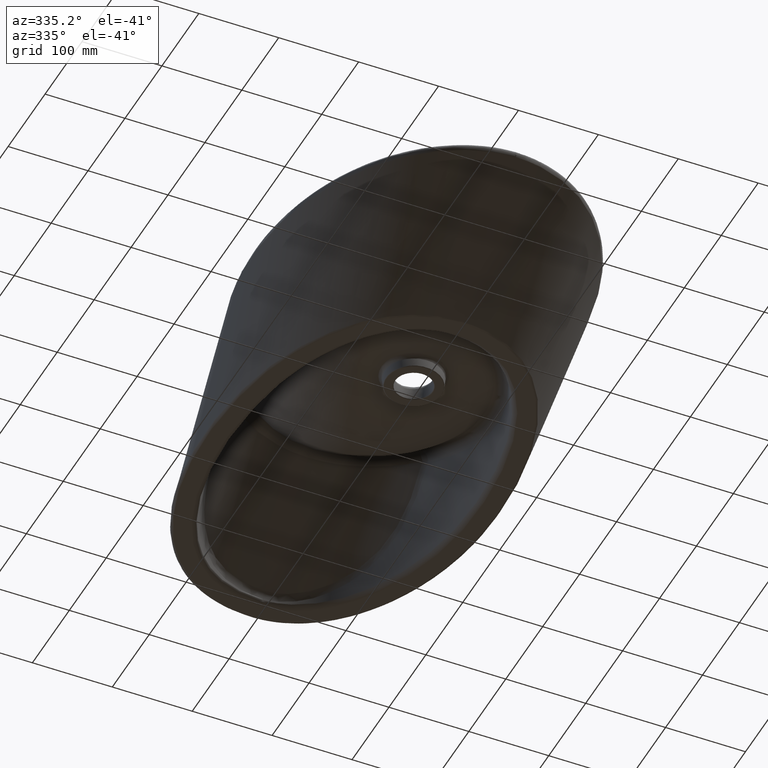
[diagram: clean part render]
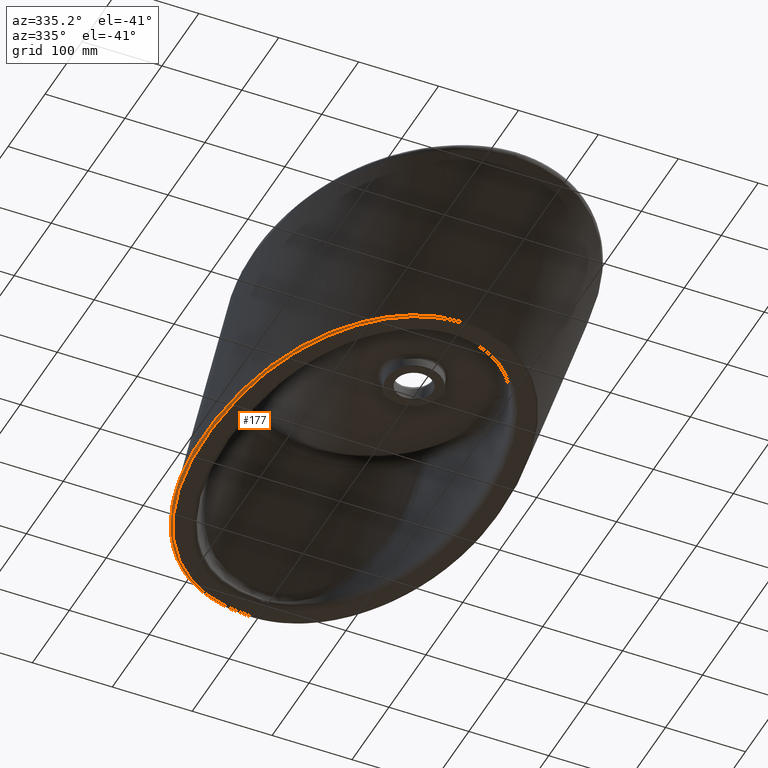
[diagram: same view with one face highlighted and labeled with its STEP entity id]
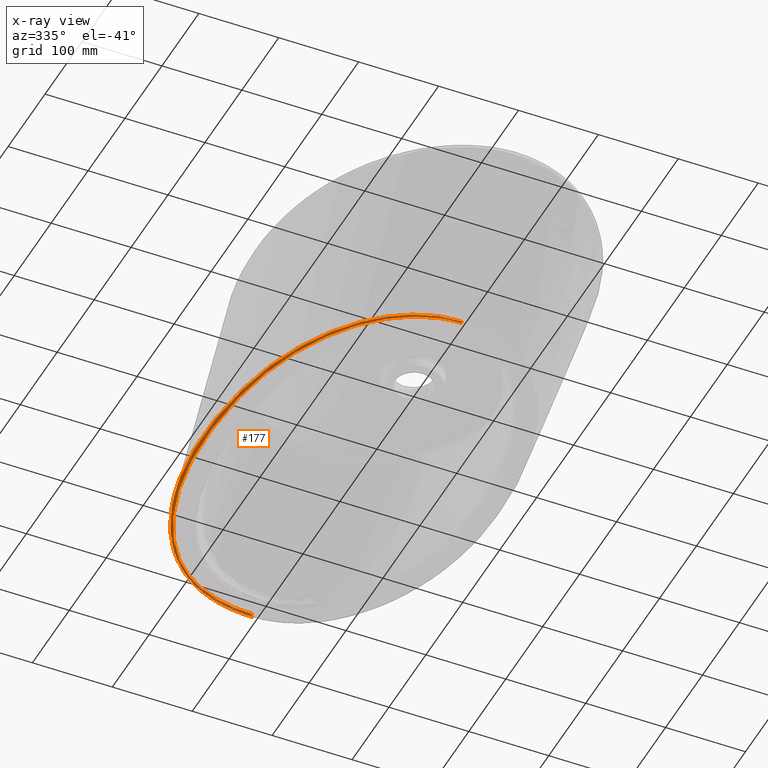
[diagram: x-ray of the same camera — body ghosted, the highlighted face saturated]
A machine part, auxiliary view. The second image highlights one B-rep face of the part: STEP entity #177.
The next image is the same camera in x-ray: the body ghosted, the highlighted face saturated — about 0% of this face is hidden behind the body in this view.
In plain terms, the highlighted face is a freeform B-spline surface patch.
Its self-contained STEP definition (entity closure, byte-faithful):
#145=FACE_OUTER_BOUND('',#258,.T.);
#177=ADVANCED_FACE('',(#145),#193,.T.);
#193=(
BOUNDED_SURFACE()
B_SPLINE_SURFACE(3,2,((#16266,#16267,#16268),(#16269,#16270,#16271),(#16272,
#16273,#16274),(#16275,#16276,#16277),(#16278,#16279,#16280),(#16281,#16282,
#16283),(#16284,#16285,#16286),(#16287,#16288,#16289),(#16290,#16291,#16292),
(#16293,#16294,#16295),(#16296,#16297,#16298),(#16299,#16300,#16301),(#16302,
#16303,#16304),(#16305,#16306,#16307),(#16308,#16309,#16310),(#16311,#16312,
#16313),(#16314,#16315,#16316),(#16317,#16318,#16319),(#16320,#16321,#16322),
(#16323,#16324,#16325),(#16326,#16327,#16328),(#16329,#16330,#16331),(#16332,
#16333,#16334),(#16335,#16336,#16337),(#16338,#16339,#16340),(#16341,#16342,
#16343),(#16344,#16345,#16346),(#16347,#16348,#16349),(#16350,#16351,#16352),
(#16353,#16354,#16355),(#16356,#16357,#16358),(#16359,#16360,#16361),(#16362,
#16363,#16364),(#16365,#16366,#16367),(#16368,#16369,#16370),(#16371,#16372,
#16373),(#16374,#16375,#16376),(#16377,#16378,#16379),(#16380,#16381,#16382),
(#16383,#16384,#16385),(#16386,#16387,#16388),(#16389,#16390,#16391),(#16392,
#16393,#16394),(#16395,#16396,#16397),(#16398,#16399,#16400),(#16401,#16402,
#16403),(#16404,#16405,#16406),(#16407,#16408,#16409),(#16410,#16411,#16412),
(#16413,#16414,#16415),(#16416,#16417,#16418),(#16419,#16420,#16421),(#16422,
#16423,#16424),(#16425,#16426,#16427),(#16428,#16429,#16430),(#16431,#16432,
#16433),(#16434,#16435,#16436),(#16437,#16438,#16439),(#16440,#16441,#16442),
(#16443,#16444,#16445),(#16446,#16447,#16448),(#16449,#16450,#16451),(#16452,
#16453,#16454),(#16455,#16456,#16457),(#16458,#16459,#16460),(#16461,#16462,
#16463)),.UNSPECIFIED.,.F.,.F.,.F.)
B_SPLINE_SURFACE_WITH_KNOTS((4,2,2,2,2,2,2,2,2,2,2,2,2,2,2,2,2,2,2,2,2,
2,2,2,2,2,2,2,2,2,2,2,4),(3,3),(0.,0.00390625,0.005859375,0.0078125,0.015625,
0.03125,0.0625,0.078125,0.09375,0.125,0.15625,0.1875,0.21875,0.25,0.3125,
0.375,0.4375,0.46875,0.5,0.5625,0.59375,0.625,0.65625,0.6875,0.75,0.78125,
0.8125,0.875,0.90625,0.9375,0.96875,0.984375,1.),(0.,1.),.UNSPECIFIED.)
GEOMETRIC_REPRESENTATION_ITEM()
RATIONAL_B_SPLINE_SURFACE(((1.,0.3572909027244,1.),(1.,0.357291852863364,
1.),(1.,0.357292803011471,1.),(1.,0.357294228230607,1.),(1.,0.35729470330786,
1.),(1.,0.357295653457776,1.),(1.,0.357297349951978,1.),(1.,0.357316010524788,
1.),(1.,0.357359736375325,1.),(1.,0.357594357642762,1.),(1.,0.357888667708263,
1.),(1.,0.359324279057586,1.),(1.,0.361014054029266,1.),(1.,0.365270604122683,
1.),(1.,0.366985746660598,1.),(1.,0.371055621179075,1.),(1.,0.373404141542212,
1.),(1.,0.381434146351181,1.),(1.,0.388190369833845,1.),(1.,0.404086708090815,
1.),(1.,0.413319292257796,1.),(1.,0.433275046513265,1.),(1.,0.444017370886106,
1.),(1.,0.466583278571303,1.),(1.,0.478478594545054,1.),(1.,0.502583983864212,
1.),(1.,0.514806292034081,1.),(1.,0.551752581376113,1.),(1.,0.576758580042427,
1.),(1.,0.626494896611777,1.),(1.,0.649151595253737,1.),(1.,0.689331635014328,
1.),(1.,0.706993055557059,1.),(1.,0.730230916311652,1.),(1.,0.737440522074386,
1.),(1.,0.75087028238501,1.),(1.,0.757098893091256,1.),(1.,0.774392778283555,
1.),(1.,0.784130819336277,1.),(1.,0.796282057179368,1.),(1.,0.79951835403304,
1.),(1.,0.806878481402961,1.),(1.,0.812711745102488,1.),(1.,0.822983224563652,
1.),(1.,0.827882174055744,1.),(1.,0.837378212895926,1.),(1.,0.841995009235178,
1.),(1.,0.855644371802229,1.),(1.,0.864296201973204,1.),(1.,0.87651594289937,
1.),(1.,0.880565119914181,1.),(1.,0.888438913778657,1.),(1.,0.892213031671928,
1.),(1.,0.903127180426162,1.),(1.,0.909990984545945,1.),(1.,0.919205938564541,
1.),(1.,0.922093869850663,1.),(1.,0.927151217765969,1.),(1.,0.929365009850183,
1.),(1.,0.933022095530882,1.),(1.,0.934369262873657,1.),(1.,0.935585810520397,
1.),(1.,0.93586158114611,1.),(1.,0.936135368838545,1.),(1.,0.936108193864393,
1.),(1.,0.936015364577366,1.)))
REPRESENTATION_ITEM('')
SURFACE()
);
#258=EDGE_LOOP('',(#366,#367,#368,#369));
#366=ORIENTED_EDGE('',*,*,#478,.T.);
#367=ORIENTED_EDGE('',*,*,#462,.T.);
#368=ORIENTED_EDGE('',*,*,#479,.T.);
#369=ORIENTED_EDGE('',*,*,#435,.T.);
#393=VERTEX_POINT('',#1643);
#395=VERTEX_POINT('',#1735);
#416=VERTEX_POINT('',#14973);
#417=VERTEX_POINT('',#14974);
#435=EDGE_CURVE('',#393,#395,#495,.T.);
#462=EDGE_CURVE('',#416,#417,#520,.T.);
#478=EDGE_CURVE('',#395,#416,#532,.T.);
#479=EDGE_CURVE('',#417,#393,#533,.T.);
#495=B_SPLINE_CURVE_WITH_KNOTS('',3,(#1736,#1737,#1738,#1739,#1740,#1741,
#1742,#1743,#1744,#1745,#1746,#1747,#1748,#1749,#1750,#1751,#1752,#1753,
#1754,#1755,#1756,#1757,#1758,#1759,#1760,#1761,#1762,#1763,#1764,#1765,
#1766,#1767,#1768,#1769,#1770,#1771,#1772,#1773,#1774,#1775,#1776,#1777,
#1778,#1779,#1780,#1781,#1782,#1783,#1784,#1785),.UNSPECIFIED.,.F.,.F.,
(4,2,2,2,2,2,2,2,2,2,2,2,2,2,2,2,2,2,2,2,2,2,2,2,4),(0.,0.03125,0.0625,
0.09375,0.125,0.1875,0.21875,0.25,0.3125,0.375,0.4375,0.5,0.5625,0.625,
0.6875,0.75,0.78125,0.8125,0.84375,0.875,0.90625,0.9375,0.96875,0.984375,
1.),.UNSPECIFIED.);
#520=B_SPLINE_CURVE_WITH_KNOTS('',3,(#14927,#14928,#14929,#14930,#14931,
#14932,#14933,#14934,#14935,#14936,#14937,#14938,#14939,#14940,#14941,#14942,
#14943,#14944,#14945,#14946,#14947,#14948,#14949,#14950,#14951,#14952,#14953,
#14954,#14955,#14956,#14957,#14958,#14959,#14960,#14961,#14962,#14963,#14964,
#14965,#14966,#14967,#14968,#14969,#14970,#14971,#14972),.UNSPECIFIED.,
 .F.,.F.,(4,2,2,2,2,2,2,2,2,2,2,2,2,2,2,2,2,2,2,2,2,2,4),(0.,0.0625000000000002,
0.0937500000000003,0.125,0.15625,0.187500000000001,0.218750000000001,0.250000000000001,
0.312500000000001,0.375000000000001,0.437500000000001,0.500000000000001,
0.562500000000001,0.625000000000001,0.687500000000001,0.750000000000001,
0.781250000000001,0.812500000000001,0.875000000000001,0.90625,0.9375,0.96875,
1.),.UNSPECIFIED.);
#532=B_SPLINE_CURVE_WITH_KNOTS('',3,(#16256,#16257,#16258,#16259,#16260,
#16261),.UNSPECIFIED.,.F.,.F.,(4,2,4),(0.,0.5,1.),.UNSPECIFIED.);
#533=B_SPLINE_CURVE_WITH_KNOTS('',3,(#16262,#16263,#16264,#16265),
 .UNSPECIFIED.,.F.,.F.,(4,4),(0.,1.),.UNSPECIFIED.);
#1643=CARTESIAN_POINT('',(1.67674860162163,-127.278417819443,-142.257566274898));
#1735=CARTESIAN_POINT('',(0.00051804703812982,437.5073530061,-137.765959281952));
#1736=CARTESIAN_POINT('',(1.67674860162169,-127.278417819437,-142.257566274903));
#1737=CARTESIAN_POINT('',(-6.21894477736492,-127.387375543256,-142.258509190588));
#1738=CARTESIAN_POINT('',(-13.9744000264923,-126.6901953672,-142.253083171759));
#1739=CARTESIAN_POINT('',(-29.231007481022,-123.834007165101,-142.231321422184));
#1740=CARTESIAN_POINT('',(-36.7760673317722,-121.651771320985,-142.214438961413));
#1741=CARTESIAN_POINT('',(-51.4157003136654,-115.918232913187,-142.171714860233));
#1742=CARTESIAN_POINT('',(-58.3855120120902,-112.436256510563,-142.146514609434));
#1743=CARTESIAN_POINT('',(-71.7307768072041,-104.427594303477,-142.089438968056));
#1744=CARTESIAN_POINT('',(-78.1317798592495,-99.870305894886,-142.05726079008));
#1745=CARTESIAN_POINT('',(-96.330905220391,-84.9450138465171,-141.956339023185));
#1746=CARTESIAN_POINT('',(-106.892677287674,-73.5878322001619,-141.882075430575));
#1747=CARTESIAN_POINT('',(-121.028801751008,-55.0236516106135,-141.765588705146));
#1748=CARTESIAN_POINT('',(-125.468364778185,-48.5479606477462,-141.725446584424));
#1749=CARTESIAN_POINT('',(-133.722507528708,-35.2705815951339,-141.64243532956));
#1750=CARTESIAN_POINT('',(-137.531277478898,-28.4809467842336,-141.600306636489));
#1751=CARTESIAN_POINT('',(-148.133043896479,-7.72101872012188,-141.473545610151));
#1752=CARTESIAN_POINT('',(-154.110053255391,6.63621666359005,-141.384683824478));
#1753=CARTESIAN_POINT('',(-164.177511430015,36.2453229173849,-141.201401677146));
#1754=CARTESIAN_POINT('',(-168.206144979986,51.275579889029,-141.108747573866));
#1755=CARTESIAN_POINT('',(-174.465521196352,81.5464928506029,-140.908670865322));
#1756=CARTESIAN_POINT('',(-176.670932772331,96.8248526365827,-140.840830201044));
#1757=CARTESIAN_POINT('',(-180.08562716237,127.535276547181,-140.687465519289));
#1758=CARTESIAN_POINT('',(-181.189898279342,142.983523650101,-140.596591520537));
#1759=CARTESIAN_POINT('',(-182.059470830232,174.086599936571,-140.387131822246));
#1760=CARTESIAN_POINT('',(-181.820001535622,189.643039850289,-140.268195508033));
#1761=CARTESIAN_POINT('',(-179.847580277659,220.482396801062,-140.002346849018));
#1762=CARTESIAN_POINT('',(-178.11803782209,235.806486334219,-139.855118452718));
#1763=CARTESIAN_POINT('',(-172.895697217503,266.228012019872,-139.536421071781));
#1764=CARTESIAN_POINT('',(-169.406548112754,281.333770166721,-139.364490778327));
#1765=CARTESIAN_POINT('',(-160.154256916896,311.221476134694,-139.008971749914));
#1766=CARTESIAN_POINT('',(-154.500175511168,325.674431710685,-138.840635349236));
#1767=CARTESIAN_POINT('',(-144.084113263804,346.429850212678,-138.608377298092));
#1768=CARTESIAN_POINT('',(-140.287032015664,353.193091711753,-138.534239933109));
#1769=CARTESIAN_POINT('',(-131.928167584893,366.35438666256,-138.393003411377));
#1770=CARTESIAN_POINT('',(-127.342525564448,372.774965789872,-138.325695475208));
#1771=CARTESIAN_POINT('',(-117.496263489802,384.882927019763,-138.202034201427));
#1772=CARTESIAN_POINT('',(-112.218138578564,390.604644942466,-138.145308661878));
#1773=CARTESIAN_POINT('',(-100.860362944033,401.297873126695,-138.042815703647));
#1774=CARTESIAN_POINT('',(-94.7281180026513,406.300060468821,-137.996807416805));
#1775=CARTESIAN_POINT('',(-81.9176538771225,415.191429169154,-137.918720373709));
#1776=CARTESIAN_POINT('',(-75.2235814917858,419.106595780188,-137.886082960195));
#1777=CARTESIAN_POINT('',(-61.2467868350322,425.855752736364,-137.834675733156));
#1778=CARTESIAN_POINT('',(-53.9265987999395,428.698802461098,-137.815238077778));
#1779=CARTESIAN_POINT('',(-38.8493577936868,433.204377774579,-137.787115914406));
#1780=CARTESIAN_POINT('',(-31.1468635386496,434.851472137964,-137.778359916995));
#1781=CARTESIAN_POINT('',(-19.5400652080729,436.461216577344,-137.770459430443));
#1782=CARTESIAN_POINT('',(-15.6542408070948,436.856681372954,-137.768685058628));
#1783=CARTESIAN_POINT('',(-7.85053320511692,437.379782381014,-137.766440724875));
#1784=CARTESIAN_POINT('',(-3.87958056979837,437.507405319619,-137.765970682982));
#1785=CARTESIAN_POINT('',(0.000518047037549408,437.507353008874,-137.765959284439));
#14927=CARTESIAN_POINT('',(0.000518433882858887,435.505088770152,-143.));
#14928=CARTESIAN_POINT('',(-15.5621692766479,435.505250143515,-143.));
#14929=CARTESIAN_POINT('',(-30.8019857031645,433.493223765088,-143.));
#14930=CARTESIAN_POINT('',(-53.0746679409747,426.816637929942,-143.));
#14931=CARTESIAN_POINT('',(-60.3533991097898,423.977758423142,-143.));
#14932=CARTESIAN_POINT('',(-74.1796354809044,417.25010983164,-143.));
#14933=CARTESIAN_POINT('',(-80.7930509678644,413.344401153449,-143.));
#14934=CARTESIAN_POINT('',(-93.4345829822124,404.474720502353,-143.));
#14935=CARTESIAN_POINT('',(-99.4770084402833,399.485353755615,-143.));
#14936=CARTESIAN_POINT('',(-110.65370591423,388.825809223969,-143.));
#14937=CARTESIAN_POINT('',(-115.840632874129,383.124403778285,-143.));
#14938=CARTESIAN_POINT('',(-125.506680646587,371.066311424165,-143.));
#14939=CARTESIAN_POINT('',(-130.001887323022,364.676794565409,-143.));
#14940=CARTESIAN_POINT('',(-138.187589534747,351.589637654378,-143.));
#14941=CARTESIAN_POINT('',(-141.902611694377,344.867750279126,-143.));
#14942=CARTESIAN_POINT('',(-152.087689658787,324.249040506592,-143.));
#14943=CARTESIAN_POINT('',(-157.607981223826,309.903995607351,-143.));
#14944=CARTESIAN_POINT('',(-166.642326948799,280.267101631992,-143.));
#14945=CARTESIAN_POINT('',(-170.05329422794,265.302950567718,-143.));
#14946=CARTESIAN_POINT('',(-175.172752629453,235.161572028928,-143.));
#14947=CARTESIAN_POINT('',(-176.875837595519,219.98145835528,-143.));
#14948=CARTESIAN_POINT('',(-178.830959746167,189.435879805464,-143.));
#14949=CARTESIAN_POINT('',(-179.079647544055,174.030341917542,-143.));
#14950=CARTESIAN_POINT('',(-178.253849839604,143.22861551913,-143.));
#14951=CARTESIAN_POINT('',(-177.184039093211,127.927950540337,-143.));
#14952=CARTESIAN_POINT('',(-173.853651573909,97.5082471263473,-143.));
#14953=CARTESIAN_POINT('',(-171.697863280939,82.3732253921686,-143.));
#14954=CARTESIAN_POINT('',(-165.599696955203,52.3756889588104,-143.));
#14955=CARTESIAN_POINT('',(-161.667508975228,37.4842675524403,-143.));
#14956=CARTESIAN_POINT('',(-151.822565967197,8.11738261052329,-143.));
#14957=CARTESIAN_POINT('',(-145.972219682894,-6.12973354487952,-143.));
#14958=CARTESIAN_POINT('',(-135.583822872668,-26.7419640081399,-143.));
#14959=CARTESIAN_POINT('',(-131.850860411229,-33.4856650782815,-143.));
#14960=CARTESIAN_POINT('',(-123.758107963622,-46.6783061687291,-143.));
#14961=CARTESIAN_POINT('',(-119.399873991287,-53.1203318249119,-143.));
#14962=CARTESIAN_POINT('',(-105.516604709903,-71.5965068648034,-143.));
#14963=CARTESIAN_POINT('',(-95.1369548566145,-82.915091438424,-143.));
#14964=CARTESIAN_POINT('',(-77.2279112911556,-97.8141163113039,-143.));
#14965=CARTESIAN_POINT('',(-70.9160551797192,-102.376231611005,-143.));
#14966=CARTESIAN_POINT('',(-57.753471798423,-110.394817423634,-143.));
#14967=CARTESIAN_POINT('',(-50.8743988229892,-113.885015143548,-143.));
#14968=CARTESIAN_POINT('',(-36.4129655733365,-119.639433431326,-143.));
#14969=CARTESIAN_POINT('',(-28.9452819220747,-121.835962791421,-143.));
#14970=CARTESIAN_POINT('',(-13.8479583217004,-124.709138240564,-143.));
#14971=CARTESIAN_POINT('',(-6.17052728590995,-125.411894316459,-143.));
#14972=CARTESIAN_POINT('',(1.64934458675244,-125.302906860019,-143.));
#14973=CARTESIAN_POINT('',(0.000518433882858887,435.505088770152,-143.));
#14974=CARTESIAN_POINT('',(1.64934458675246,-125.302906860019,-143.));
#16256=CARTESIAN_POINT('',(0.000523369311799462,437.507353008794,-137.765959284417));
#16257=CARTESIAN_POINT('',(0.000532677338495764,438.405009907591,-138.570486388395));
#16258=CARTESIAN_POINT('',(0.000536127667351723,438.737756213734,-139.946028079274));
#16259=CARTESIAN_POINT('',(0.000527195743664639,437.876370317577,-142.197743295314));
#16260=CARTESIAN_POINT('',(0.000515106698448602,436.710514740223,-143.));
#16261=CARTESIAN_POINT('',(0.000502607338032238,435.505088770316,-143.));
#16262=CARTESIAN_POINT('',(1.6492811356508,-125.302907744335,-143.));
#16263=CARTESIAN_POINT('',(1.65929942031211,-126.021750856322,-143.));
#16264=CARTESIAN_POINT('',(1.66927418964535,-126.737471608055,-142.731018598322));
#16265=CARTESIAN_POINT('',(1.67681317014752,-127.278416928397,-142.257566267192));
#16266=CARTESIAN_POINT('',(4.48296923974109,435.505042290162,-143.));
#16267=CARTESIAN_POINT('',(4.48305055962103,443.34733393279,-143.));
#16268=CARTESIAN_POINT('',(4.48299000181063,437.507285831821,-137.765940735018));
#16269=CARTESIAN_POINT('',(3.4985421095964,435.505052498163,-143.));
#16270=CARTESIAN_POINT('',(3.49862604685474,443.347320234187,-143.000000000464));
#16271=CARTESIAN_POINT('',(3.49856287165161,437.507300585332,-137.765944808937));
#16272=CARTESIAN_POINT('',(2.51411497958031,435.505062705994,-143.));
#16273=CARTESIAN_POINT('',(2.51419891627537,443.347306535075,-143.000000000041));
#16274=CARTESIAN_POINT('',(2.51413574159888,437.507315338406,-137.765948882535));
#16275=CARTESIAN_POINT('',(1.03747428434436,435.505078017667,-143.));
#16276=CARTESIAN_POINT('',(1.03755625690673,443.347285986843,-142.99999999998));
#16277=CARTESIAN_POINT('',(1.03749504634467,437.507337468134,-137.765954993141));
#16278=CARTESIAN_POINT('',(0.545260719331827,435.505083121564,-143.));
#16279=CARTESIAN_POINT('',(0.545342691640006,443.347279137394,-143.000000000014));
#16280=CARTESIAN_POINT('',(0.545281481322001,437.507344844753,-137.765957030066));
#16281=CARTESIAN_POINT('',(-0.439166410804005,435.505093329373,-143.));
#16282=CARTESIAN_POINT('',(-0.43908443904989,443.347265438673,-142.999999999986));
#16283=CARTESIAN_POINT('',(-0.439145648844426,437.507359597912,-137.765961103881));
#16284=CARTESIAN_POINT('',(-0.93110424419317,435.503349020232,-143.));
#16285=CARTESIAN_POINT('',(-0.971935077733096,443.34540228373,-142.999999999973));
#16286=CARTESIAN_POINT('',(-0.941530539729499,437.505603948942,-137.765968377595));
#16287=CARTESIAN_POINT('',(-3.38907691149996,435.483736934231,-143.));
#16288=CARTESIAN_POINT('',(-3.53849315047049,443.324454297926,-143.000000000109));
#16289=CARTESIAN_POINT('',(-3.42725031844871,437.485859741217,-137.766048386999));
#16290=CARTESIAN_POINT('',(-5.35030790317624,435.435390596303,-143.));
#16291=CARTESIAN_POINT('',(-5.58759889850644,443.272875837565,-143.000000000109));
#16292=CARTESIAN_POINT('',(-5.41101919148761,437.437173737984,-137.766235850514));
#16293=CARTESIAN_POINT('',(-11.2182295208576,435.190288289198,-143.));
#16294=CARTESIAN_POINT('',(-11.7223582181896,443.010725019047,-142.999999999783));
#16295=CARTESIAN_POINT('',(-11.3475767545855,437.190327647715,-137.767242200678));
#16296=CARTESIAN_POINT('',(-15.1091573868054,434.893523574904,-143.));
#16297=CARTESIAN_POINT('',(-15.7931094878349,442.693283316622,-143.000000000162));
#16298=CARTESIAN_POINT('',(-15.2856253029277,436.891435422891,-137.76850441699));
#16299=CARTESIAN_POINT('',(-26.7159565276296,433.584583024915,-143.));
#16300=CARTESIAN_POINT('',(-27.9430231153456,441.286993058771,-142.999999999677));
#16301=CARTESIAN_POINT('',(-27.0378840526319,435.572990956033,-137.77467812891));
#16302=CARTESIAN_POINT('',(-34.3660203853873,432.154884037736,-143.));
#16303=CARTESIAN_POINT('',(-35.9376904692706,439.758096881998,-142.999999999781));
#16304=CARTESIAN_POINT('',(-34.7903618555802,434.132797971969,-137.781938567847));
#16305=CARTESIAN_POINT('',(-45.6949913592058,429.083228927939,-143.));
#16306=CARTESIAN_POINT('',(-47.8771939695058,436.413190195006,-143.000000000108));
#16307=CARTESIAN_POINT('',(-46.2810139119037,431.038192507027,-137.800523606676));
#16308=CARTESIAN_POINT('',(-49.4637862501569,427.898136312223,-143.));
#16309=CARTESIAN_POINT('',(-51.8259405245151,435.12993495907,-143.));
#16310=CARTESIAN_POINT('',(-50.1052844143623,429.844196514574,-137.808046383742));
#16311=CARTESIAN_POINT('',(-56.8599503110702,425.233038253746,-143.));
#16312=CARTESIAN_POINT('',(-59.5778911091245,432.234090504272,-143.));
#16313=CARTESIAN_POINT('',(-57.6136712996863,427.158981831213,-137.826068798186));
#16314=CARTESIAN_POINT('',(-60.4795983226582,423.757689984967,-143.));
#16315=CARTESIAN_POINT('',(-63.3613214524253,430.63502576484,-143.000000000109));
#16316=CARTESIAN_POINT('',(-61.2899193465795,425.672468250572,-137.83654093032));
#16317=CARTESIAN_POINT('',(-71.108042445222,418.911990379416,-143.));
#16318=CARTESIAN_POINT('',(-74.3863449696826,425.407904677455,-142.999999999787));
#16319=CARTESIAN_POINT('',(-72.0894650594668,420.789741588643,-137.872780098517));
#16320=CARTESIAN_POINT('',(-77.8871180406731,415.123403236575,-143.));
#16321=CARTESIAN_POINT('',(-81.4008755689298,421.341837290658,-142.99999999989));
#16322=CARTESIAN_POINT('',(-78.9842597621798,416.972225384701,-137.903771538845));
#16323=CARTESIAN_POINT('',(-90.8477089370622,406.45829341992,-143.));
#16324=CARTESIAN_POINT('',(-94.7947517848202,411.988754695498,-143.000000000106));
#16325=CARTESIAN_POINT('',(-92.1764937633992,408.237981722819,-137.979337365769));
#16326=CARTESIAN_POINT('',(-97.0680234118461,401.538950292505,-143.));
#16327=CARTESIAN_POINT('',(-101.16401940869,406.751548749033,-142.999999999889));
#16328=CARTESIAN_POINT('',(-98.5132720587787,403.278247890709,-138.024399675946));
#16329=CARTESIAN_POINT('',(-108.596030589511,390.95260238612,-143.));
#16330=CARTESIAN_POINT('',(-112.909246585626,395.464750995226,-143.000000000106));
#16331=CARTESIAN_POINT('',(-110.263529904954,392.602932747551,-138.125766247372));
#16332=CARTESIAN_POINT('',(-113.941209421778,385.271683709645,-143.));
#16333=CARTESIAN_POINT('',(-118.316885956901,389.481080154655,-142.999999999555));
#16334=CARTESIAN_POINT('',(-115.715083894384,386.873370599,-138.182144723267));
#16335=CARTESIAN_POINT('',(-123.896901661967,373.229698782621,-143.));
#16336=CARTESIAN_POINT('',(-128.316167065441,376.810368753993,-143.000000000423));
#16337=CARTESIAN_POINT('',(-125.872116986607,374.727566030563,-138.305435905109));
#16338=CARTESIAN_POINT('',(-128.530059407768,366.828653690006,-143.));
#16339=CARTESIAN_POINT('',(-132.947736323458,370.139653809764,-143.000000000334));
#16340=CARTESIAN_POINT('',(-130.600730864355,368.27101596057,-138.372778988122));
#16341=CARTESIAN_POINT('',(-136.981637553688,353.663600261348,-143.));
#16342=CARTESIAN_POINT('',(-141.327740515975,356.447303705046,-142.999999999682));
#16343=CARTESIAN_POINT('',(-139.227553022491,354.992360183351,-138.514672360143));
#16344=CARTESIAN_POINT('',(-140.812679137136,346.894780254566,-143.));
#16345=CARTESIAN_POINT('',(-145.117909601256,349.453816101255,-143.000000000772));
#16346=CARTESIAN_POINT('',(-143.138639892296,348.165415730636,-138.589243091788));
#16347=CARTESIAN_POINT('',(-151.308800696114,326.117804241462,-143.));
#16348=CARTESIAN_POINT('',(-155.178694322737,328.520220128213,-142.99999999856));
#16349=CARTESIAN_POINT('',(-153.853642279123,327.212197123175,-138.822945389386));
#16350=CARTESIAN_POINT('',(-156.987738418946,311.644257848819,-143.));
#16351=CARTESIAN_POINT('',(-160.788048410213,313.744681981213,-142.999999995918));
#16352=CARTESIAN_POINT('',(-159.650296982421,312.618902902233,-138.992192202402));
#16353=CARTESIAN_POINT('',(-166.279468493206,281.72208849417,-143.));
#16354=CARTESIAN_POINT('',(-169.717855802046,283.244824595755,-143.000000003758));
#16355=CARTESIAN_POINT('',(-169.124275345236,282.457645406714,-139.351264584839));
#16356=CARTESIAN_POINT('',(-169.794868287554,266.562470974137,-143.));
#16357=CARTESIAN_POINT('',(-173.157089336726,267.763466162691,-142.999999999557));
#16358=CARTESIAN_POINT('',(-172.698757628683,267.18077923122,-139.525965107923));
#16359=CARTESIAN_POINT('',(-175.059870582959,236.070196929906,-143.));
#16360=CARTESIAN_POINT('',(-178.113400911987,236.928321589891,-143.000000000417));
#16361=CARTESIAN_POINT('',(-178.036286362766,236.467221931222,-139.848646965204));
#16362=CARTESIAN_POINT('',(-176.810872601305,220.711460637216,-143.));
#16363=CARTESIAN_POINT('',(-179.77871401104,221.340588267158,-142.999999996267));
#16364=CARTESIAN_POINT('',(-179.801185178326,221.004050335517,-139.997595084835));
#16365=CARTESIAN_POINT('',(-178.321472131231,197.530815022239,-143.));
#16366=CARTESIAN_POINT('',(-181.12035659185,197.749213032167,-143.000000001808));
#16367=CARTESIAN_POINT('',(-181.312448414175,197.676865342002,-140.19906314988));
#16368=CARTESIAN_POINT('',(-178.637538493651,189.779986868505,-143.));
#16369=CARTESIAN_POINT('',(-181.383063223134,189.941274231572,-143.000000000218));
#16370=CARTESIAN_POINT('',(-181.62534033672,189.87883935479,-140.262640604135));
#16371=CARTESIAN_POINT('',(-178.914897686696,174.233013169877,-143.));
#16372=CARTESIAN_POINT('',(-181.553007089133,174.30885659852,-142.999999999786));
#16373=CARTESIAN_POINT('',(-181.891354906384,174.240563518661,-140.382566547878));
#16374=CARTESIAN_POINT('',(-178.875666815483,166.421626820758,-143.));
#16375=CARTESIAN_POINT('',(-181.466263398768,166.448724789524,-142.999999999237));
#16376=CARTESIAN_POINT('',(-181.843940280744,166.384987959845,-140.43899301713));
#16377=CARTESIAN_POINT('',(-178.248858320612,143.043163773438,-143.));
#16378=CARTESIAN_POINT('',(-180.704326167888,143.136842813728,-143.000000001492));
#16379=CARTESIAN_POINT('',(-181.187382513246,142.878488728252,-140.597307509266));
#16380=CARTESIAN_POINT('',(-177.158203673556,127.560140662884,-143.));
#16381=CARTESIAN_POINT('',(-179.543070529097,127.519879319162,-143.000000002171));
#16382=CARTESIAN_POINT('',(-180.069929455537,127.315835120776,-140.688773112981));
#16383=CARTESIAN_POINT('',(-174.608764341729,104.47493488509,-143.));
#16384=CARTESIAN_POINT('',(-176.875173556044,104.233645575199,-142.999999998931));
#16385=CARTESIAN_POINT('',(-177.477533192947,104.119492335114,-140.804292251361));
#16386=CARTESIAN_POINT('',(-173.608300265859,96.80284495808,-143.));
#16387=CARTESIAN_POINT('',(-175.847137544538,96.5344800625847,-142.999999997843));
#16388=CARTESIAN_POINT('',(-176.463949095546,96.4148996620126,-140.83529633126));
#16389=CARTESIAN_POINT('',(-171.314631806981,81.5033165351676,-143.));
#16390=CARTESIAN_POINT('',(-173.487470978014,81.1822545823046,-143.000000002137));
#16391=CARTESIAN_POINT('',(-174.13722281839,81.0399937882883,-140.906236047437));
#16392=CARTESIAN_POINT('',(-169.992068987388,73.880356059998,-143.));
#16393=CARTESIAN_POINT('',(-172.11720462213,73.5350854777881,-142.99999999881));
#16394=CARTESIAN_POINT('',(-172.786606363807,73.3612257812326,-140.962844027566));
#16395=CARTESIAN_POINT('',(-166.863146786472,58.7082281910937,-143.));
#16396=CARTESIAN_POINT('',(-168.892834393674,58.2965240546959,-143.000000001175));
#16397=CARTESIAN_POINT('',(-169.599633783489,58.0867046934807,-141.063650073807));
#16398=CARTESIAN_POINT('',(-165.071270354076,51.1568517270717,-143.));
#16399=CARTESIAN_POINT('',(-167.056121203577,50.7096687832157,-143.000000000652));
#16400=CARTESIAN_POINT('',(-167.776376602004,50.4850451326081,-141.11219810325));
#16401=CARTESIAN_POINT('',(-161.009886332946,36.1269514780934,-143.));
#16402=CARTESIAN_POINT('',(-162.901481783826,35.6190949283213,-142.999999999356));
#16403=CARTESIAN_POINT('',(-163.646802059695,35.3552353390421,-141.207078365801));
#16404=CARTESIAN_POINT('',(-158.734378971519,28.6301600825715,-143.));
#16405=CARTESIAN_POINT('',(-160.581476185604,28.0906525821832,-142.999999999782));
#16406=CARTESIAN_POINT('',(-161.334346585268,27.8086269242644,-141.253609369721));
#16407=CARTESIAN_POINT('',(-151.160209649613,6.38863946910471,-143.));
#16408=CARTESIAN_POINT('',(-152.905715366497,5.88202815278523,-143.00000000043));
#16409=CARTESIAN_POINT('',(-153.638611288752,5.41691048735797,-141.392266933069));
#16410=CARTESIAN_POINT('',(-145.156666907563,-7.99038403677619,-143.));
#16411=CARTESIAN_POINT('',(-146.818959678296,-8.57729387647962,-143.000000000873));
#16412=CARTESIAN_POINT('',(-147.541178793622,-9.06155372205856,-141.481649356804));
#16413=CARTESIAN_POINT('',(-134.484118891625,-28.7749147743614,-143.));
#16414=CARTESIAN_POINT('',(-135.946151458534,-29.5350599691567,-142.99999999957));
#16415=CARTESIAN_POINT('',(-136.705521123363,-29.9921927333279,-141.609581640638));
#16416=CARTESIAN_POINT('',(-130.646295523773,-35.5712792036882,-143.));
#16417=CARTESIAN_POINT('',(-132.058868480492,-36.358303299645,-143.000000000437));
#16418=CARTESIAN_POINT('',(-132.808355936641,-36.8376561440841,-141.652276587886));
#16419=CARTESIAN_POINT('',(-122.318245910322,-48.8572203895326,-143.));
#16420=CARTESIAN_POINT('',(-123.624696855388,-49.6916887528388,-142.999999999567));
#16421=CARTESIAN_POINT('',(-124.351869746052,-50.2208315017426,-141.735849225779));
#16422=CARTESIAN_POINT('',(-117.847188787138,-55.3152491617319,-143.));
#16423=CARTESIAN_POINT('',(-119.100824720203,-56.1765947600075,-143.000000001845));
#16424=CARTESIAN_POINT('',(-119.81255650563,-56.7264774174245,-141.776185152276));
#16425=CARTESIAN_POINT('',(-103.586061335113,-73.8253644960344,-143.));
#16426=CARTESIAN_POINT('',(-104.731780476939,-74.6769465531521,-142.999999996355));
#16427=CARTESIAN_POINT('',(-105.331412106651,-75.3760513928415,-141.893514571646));
#16428=CARTESIAN_POINT('',(-92.9116617957398,-85.1285061670553,-143.));
#16429=CARTESIAN_POINT('',(-93.945480579537,-86.0533299217028,-143.000000002203));
#16430=CARTESIAN_POINT('',(-94.4875189392689,-86.769755816218,-141.968275112459));
#16431=CARTESIAN_POINT('',(-74.4345235474132,-99.8924343931455,-143.));
#16432=CARTESIAN_POINT('',(-75.2095906113765,-100.9184801483,-142.99999999891));
#16433=CARTESIAN_POINT('',(-75.7098646265298,-101.654003006842,-142.069580733834));
#16434=CARTESIAN_POINT('',(-67.9887367099953,-104.333293831002,-143.));
#16435=CARTESIAN_POINT('',(-68.6935777456709,-105.380433422255,-142.999999999783));
#16436=CARTESIAN_POINT('',(-69.156139231019,-106.132035279516,-142.101504263516));
#16437=CARTESIAN_POINT('',(-54.4762541074119,-112.113439280598,-143.));
#16438=CARTESIAN_POINT('',(-55.042021623762,-113.186889071987,-143.000000000216));
#16439=CARTESIAN_POINT('',(-55.4175697576574,-113.977099490976,-142.157617918707));
#16440=CARTESIAN_POINT('',(-47.3921308907128,-115.468471601501,-143.));
#16441=CARTESIAN_POINT('',(-47.8824840913375,-116.558376666332,-142.99999999978));
#16442=CARTESIAN_POINT('',(-48.2142135552719,-117.360322147384,-142.182295867758));
#16443=CARTESIAN_POINT('',(-32.5476403474412,-120.849250361044,-143.));
#16444=CARTESIAN_POINT('',(-32.8871429631116,-121.95691564108,-143.000000000219));
#16445=CARTESIAN_POINT('',(-33.1136632578547,-122.786904985826,-142.223161323111));
#16446=CARTESIAN_POINT('',(-24.9944774665583,-122.793567323667,-143.));
#16447=CARTESIAN_POINT('',(-25.2500867700296,-123.911727329133,-143.00000000054));
#16448=CARTESIAN_POINT('',(-25.4292598005306,-124.747762360375,-142.23827157015));
#16449=CARTESIAN_POINT('',(-13.4642052617234,-124.567275769765,-143.));
#16450=CARTESIAN_POINT('',(-13.6005688092892,-125.691852928819,-142.99999999973));
#16451=CARTESIAN_POINT('',(-13.7000414249489,-126.536454174406,-142.251923866241));
#16452=CARTESIAN_POINT('',(-9.58722223976963,-124.967266372662,-143.));
#16453=CARTESIAN_POINT('',(-9.68416529884525,-126.093342085968,-142.999999999891));
#16454=CARTESIAN_POINT('',(-9.75604242002701,-126.939834609979,-142.255021281884));
#16455=CARTESIAN_POINT('',(-1.76290356677987,-125.36632247237,-143.));
#16456=CARTESIAN_POINT('',(-1.78204984698379,-126.493699111964,-143.000000000109));
#16457=CARTESIAN_POINT('',(-1.79546850073646,-127.342325151259,-142.258096460372));
#16458=CARTESIAN_POINT('',(2.19504479581293,-125.344753160966,-143.));
#16459=CARTESIAN_POINT('',(2.22117729070841,-126.472164276654,-143.));
#16460=CARTESIAN_POINT('',(2.24016304811843,-127.320569163051,-142.257491844376));
#16461=CARTESIAN_POINT('',(6.14844235811192,-125.161541113082,-143.));
#16462=CARTESIAN_POINT('',(6.20066372130339,-126.28838737068,-143.));
#16463=CARTESIAN_POINT('',(6.23994721698252,-127.136056933213,-142.256748576349));